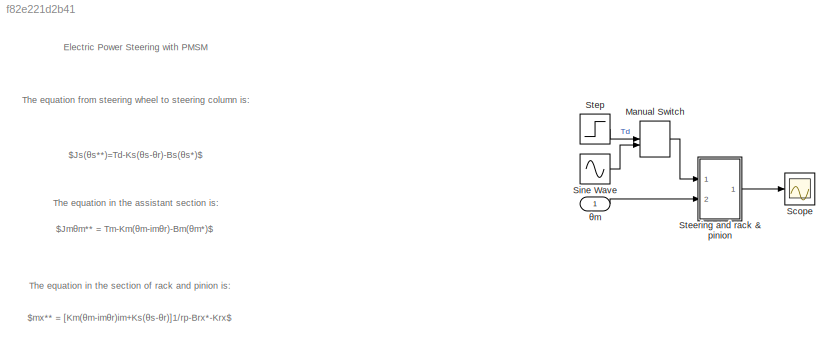
MODEL slx_f82e221d2b41
KIND model
CONFIG AbsTol = auto
CONFIG EnableMultiTasking = off
CONFIG FixedStep = auto
CONFIG MaxStep = auto
CONFIG MinStep = auto
CONFIG RelTol = 1e-3
CONFIG SampleTimeConstraint = Unconstrained
CONFIG SolverName = VariableStepAuto
CONFIG StartTime = 0.0
CONFIG StopTime = 10.0
BLOCK [ManualSwitch] Manual Switch
BLOCK [Scope] Scope
  Floating = off
  NumInputPorts = 1
  Ports = [1]
  ScopeSpecificationString = Simulink.scopes.TimeScopeBlockCfg('CurrentConfiguration', extmgr.ConfigurationSet(extmgr.Configuration('Core','General UI',true),extmgr.Configuration('Core','Source UI',true),extmgr.Configuration('Sources','WiredSimulink',true),extmgr.Configuration('Visuals','Time Domain',true),extmgr.Configuration('Tools','Plot Navigation',true),extmgr.Configuration('Tools','Measurements',true)),'Version','2020b'...<+1ch>
BLOCK [Sin] Sine Wave
  Ports = [0, 1]
  SampleTime = 0
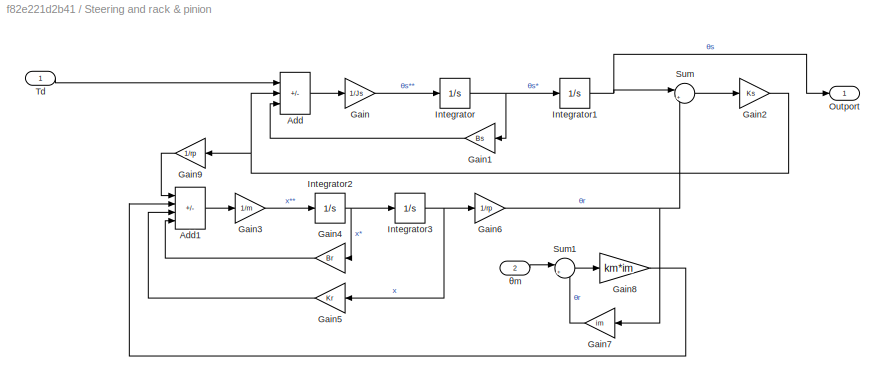
BLOCK [SubSystem] Steering and rack & pinion
  Ports = [2, 1]
  RequestExecContextInheritance = off
BLOCK [Sum] Steering and rack & pinion/Add
  IconShape = rectangular
  Inputs = +--
  Ports = [3, 1]
BLOCK [Sum] Steering and rack & pinion/Add1
  IconShape = rectangular
  Inputs = ++--
  Ports = [4, 1]
BLOCK [Gain] Steering and rack & pinion/Gain
  Gain = 1/Js
BLOCK [Gain] Steering and rack & pinion/Gain1
  Gain = Bs
BLOCK [Gain] Steering and rack & pinion/Gain2
  Gain = Ks
BLOCK [Gain] Steering and rack & pinion/Gain3
  Gain = 1/m
BLOCK [Gain] Steering and rack & pinion/Gain4
  Gain = Br
BLOCK [Gain] Steering and rack & pinion/Gain5
  Gain = Kr
BLOCK [Gain] Steering and rack & pinion/Gain6
  Gain = 1/rp
BLOCK [Gain] Steering and rack & pinion/Gain7
  Gain = im
BLOCK [Gain] Steering and rack & pinion/Gain8
  Gain = km*im
BLOCK [Gain] Steering and rack & pinion/Gain9
  Gain = 1/rp
BLOCK [Integrator] Steering and rack & pinion/Integrator
  Ports = [1, 1]
BLOCK [Integrator] Steering and rack & pinion/Integrator1
  Ports = [1, 1]
BLOCK [Integrator] Steering and rack & pinion/Integrator2
  Ports = [1, 1]
BLOCK [Integrator] Steering and rack & pinion/Integrator3
  Ports = [1, 1]
BLOCK [Outport] Steering and rack & pinion/Outport
BLOCK [Sum] Steering and rack & pinion/Sum
  Inputs = |+-
  Ports = [2, 1]
BLOCK [Sum] Steering and rack & pinion/Sum1
  Inputs = |+-
  Ports = [2, 1]
BLOCK [Inport] Steering and rack & pinion/Td
BLOCK [Inport] Steering and rack & pinion/θm
  Port = 2
BLOCK [Step] Step
  SampleTime = 0
BLOCK [Inport] θm
ANNOTATION (root): The equation from steering wheel to steering column is:
ANNOTATION (root): The equation in the assistant section is:
ANNOTATION (root): The equation in the section of rack and pinion is:
ANNOTATION (root): Electric Power Steering with PMSM
ANNOTATION (root): $mx** = [Km(θm-imθr)im+Ks(θs-θr)]1/rp-Brx*-Krx$
ANNOTATION (root): $Jmθm** = Tm-Km(θm-imθr)-Bm(θm*)$
ANNOTATION (root): $Js(θs**)=Td-Ks(θs-θr)-Bs(θs*)$
LINE Manual Switch:1 -> Steering and rack & pinion:1
LINE Sine Wave:1 -> Manual Switch:2
LINE Steering and rack & pinion/Add1:1 -> Steering and rack & pinion/Gain3:1
LINE Steering and rack & pinion/Add:1 -> Steering and rack & pinion/Gain:1
LINE Steering and rack & pinion/Gain1:1 -> Steering and rack & pinion/Add:3
NET Steering and rack & pinion/Gain2:1 -> Steering and rack & pinion/Add:2, Steering and rack & pinion/Gain9:1
LINE Steering and rack & pinion/Gain3:1 -> Steering and rack & pinion/Integrator2:1
LINE Steering and rack & pinion/Gain4:1 -> Steering and rack & pinion/Add1:4
LINE Steering and rack & pinion/Gain5:1 -> Steering and rack & pinion/Add1:3
NET Steering and rack & pinion/Gain6:1 -> Steering and rack & pinion/Gain7:1, Steering and rack & pinion/Sum:2
LINE Steering and rack & pinion/Gain7:1 -> Steering and rack & pinion/Sum1:2
LINE Steering and rack & pinion/Gain8:1 -> Steering and rack & pinion/Add1:2
LINE Steering and rack & pinion/Gain9:1 -> Steering and rack & pinion/Add1:1
LINE Steering and rack & pinion/Gain:1 -> Steering and rack & pinion/Integrator:1
NET Steering and rack & pinion/Integrator1:1 -> Steering and rack & pinion/Outport:1, Steering and rack & pinion/Sum:1
NET Steering and rack & pinion/Integrator2:1 -> Steering and rack & pinion/Gain4:1, Steering and rack & pinion/Integrator3:1
NET Steering and rack & pinion/Integrator3:1 -> Steering and rack & pinion/Gain5:1, Steering and rack & pinion/Gain6:1
NET Steering and rack & pinion/Integrator:1 -> Steering and rack & pinion/Gain1:1, Steering and rack & pinion/Integrator1:1
LINE Steering and rack & pinion/Sum1:1 -> Steering and rack & pinion/Gain8:1
LINE Steering and rack & pinion/Sum:1 -> Steering and rack & pinion/Gain2:1
LINE Steering and rack & pinion/Td:1 -> Steering and rack & pinion/Add:1
LINE Steering and rack & pinion/θm:1 -> Steering and rack & pinion/Sum1:1
LINE Steering and rack & pinion:1 -> Scope:1
LINE Step:1 -> Manual Switch:1
LINE θm:1 -> Steering and rack & pinion:2
note: NET lines group one-source signal fan-out (src -> all destinations, sorted); 1:1 wires keep LINE
